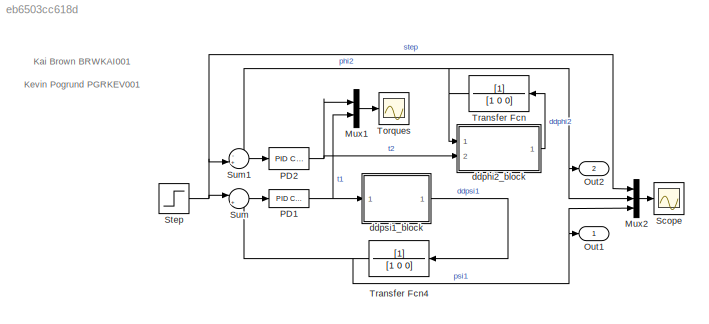
MODEL slx_eb6503cc618d
KIND model
CONFIG AbsTol = auto
CONFIG EnableMultiTasking = off
CONFIG FixedStep = auto
CONFIG MaxStep = auto
CONFIG MinStep = auto
CONFIG RelTol = 1e-3
CONFIG SampleTimeConstraint = Unconstrained
CONFIG SolverName = VariableStepAuto
CONFIG StartTime = 0.0
CONFIG StopTime = 3.5
BLOCK [Mux] Mux1
  DisplayOption = bar
  Inputs = 2
  Ports = [2, 1]
BLOCK [Mux] Mux2
  DisplayOption = bar
  Inputs = 3
  Ports = [3, 1]
BLOCK [Outport] Out1
  SampleTime = 0.01
BLOCK [Outport] Out2
  Port = 2
  SampleTime = 0.01
BLOCK [Reference] PD1  REF=pid_lib/PID Controller
  Ports = [1, 1]
  SourceBlock = pid_lib/PID Controller
  SourceProductBaseCode = SL
  SourceType = PID 1dof
BLOCK [Reference] PD2  REF=pid_lib/PID Controller
  Ports = [1, 1]
  SourceBlock = pid_lib/PID Controller
  SourceProductBaseCode = SL
  SourceType = PID 1dof
BLOCK [Scope] Scope
  Floating = off
  NumInputPorts = 1
  Ports = [1]
  ScopeSpecificationString = Simulink.scopes.TimeScopeBlockCfg('CurrentConfiguration', extmgr.ConfigurationSet(extmgr.Configuration('Core','General UI',true),extmgr.Configuration('Core','Source UI',true),extmgr.Configuration('Sources','WiredSimulink',true,'DataLoggingVariableName','ScopeData1'),extmgr.Configuration('Visuals','Time Domain',true,'SerializedDisplays',{struct('MinYLimReal','-9.42801','MaxYLimReal','84.79457','YLa...<+1419ch>
BLOCK [Step] Step
  After = 45
  SampleTime = 0
  Time = 0.02
BLOCK [Sum] Sum
  Inputs = |+-
  Ports = [2, 1]
BLOCK [Sum] Sum1
  Inputs = -+|
  Ports = [2, 1]
BLOCK [Scope] Torques
  Floating = off
  NumInputPorts = 1
  Ports = [1]
  ScopeSpecificationString = Simulink.scopes.TimeScopeBlockCfg('CurrentConfiguration', extmgr.ConfigurationSet(extmgr.Configuration('Core','General UI',true),extmgr.Configuration('Core','Source UI',true),extmgr.Configuration('Sources','WiredSimulink',true,'DataLoggingVariableName','ScopeData1'),extmgr.Configuration('Visuals','Time Domain',true,'SerializedDisplays',{struct('MinYLimReal','-5858.21566','MaxYLimReal','10651.90035...<+1750ch>
BLOCK [TransferFcn] Transfer Fcn
  Denominator = [1 0 0]
BLOCK [TransferFcn] Transfer Fcn4
  Denominator = [1 0 0]
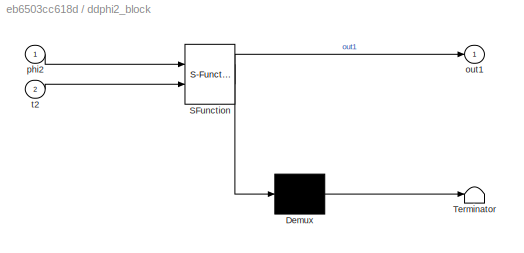
BLOCK [SubSystem] ddphi2_block
  ErrorFcn = Stateflow.Translate.translate
  PermitHierarchicalResolution = ExplicitOnly
  Ports = [2, 1]
  RequestExecContextInheritance = off
  SFBlockType = MATLAB Function
  TreatAsAtomicUnit = on
BLOCK [Demux] ddphi2_block/ Demux 
  Outputs = 1
  Ports = [1, 1]
BLOCK [S-Function] ddphi2_block/ SFunction 
  EnableBusSupport = on
  FunctionName = sf_sfun
  PortCounts = [2 2]
  Ports = [2, 2]
  SFcnIsStateOwnerBlock = off
  SFunctionDeploymentMode = off
  Tag = Stateflow S-Function 1
BLOCK [Terminator] ddphi2_block/ Terminator 
BLOCK [Outport] ddphi2_block/out1
BLOCK [Inport] ddphi2_block/phi2
BLOCK [Inport] ddphi2_block/t2
  Port = 2
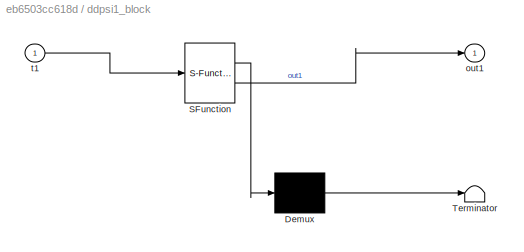
BLOCK [SubSystem] ddpsi1_block
  ErrorFcn = Stateflow.Translate.translate
  PermitHierarchicalResolution = ExplicitOnly
  Ports = [1, 1]
  RequestExecContextInheritance = off
  SFBlockType = MATLAB Function
  TreatAsAtomicUnit = on
BLOCK [Demux] ddpsi1_block/ Demux 
  Outputs = 1
  Ports = [1, 1]
BLOCK [S-Function] ddpsi1_block/ SFunction 
  EnableBusSupport = on
  FunctionName = sf_sfun
  PortCounts = [1 2]
  Ports = [1, 2]
  SFcnIsStateOwnerBlock = off
  SFunctionDeploymentMode = off
  Tag = Stateflow S-Function 2
BLOCK [Terminator] ddpsi1_block/ Terminator 
BLOCK [Outport] ddpsi1_block/out1
BLOCK [Inport] ddpsi1_block/t1
ANNOTATION (root): Kai Brown BRWKAI001
ANNOTATION (root): Kevin Pogrund PGRKEV001
LINE Mux1:1 -> Torques:1
LINE Mux2:1 -> Scope:1
NET PD1:1 -> Mux1:2, ddpsi1_block:1
NET PD2:1 -> Mux1:1, ddphi2_block:2
NET Step:1 -> Mux2:1, Sum1:2, Sum:1
LINE Sum1:1 -> PD2:1
LINE Sum:1 -> PD1:1
NET Transfer Fcn4:1 -> Mux2:3, Out1:1, Sum:2
NET Transfer Fcn:1 -> Mux2:2, Out2:1, Sum1:1, ddphi2_block:1
LINE ddphi2_block:1 -> Transfer Fcn:1
LINE ddpsi1_block:1 -> Transfer Fcn4:1
note: NET lines group one-source signal fan-out (src -> all destinations, sorted); 1:1 wires keep LINE
CHART ddpsi1_block states=1 transitions=1
  STATE_LABEL 'eML_blk_kernel()'
  STATE_LABEL 'SCRIPT:\nfunction out1 = ddpsi1_block(t1)\n%#codegen\n\n%    This function was generated by the Symbolic Math Toolbox version 8.7.\n%    24-May-2021 23:02:07\n\nout1 = t1.*(4.8e+1./1.1e+1);\n'
CHART ddphi2_block states=1 transitions=1
  STATE_LABEL 'eML_blk_kernel()'
  STATE_LABEL 'SCRIPT:\nfunction out1 = ddphi2_block(phi2,t2)\n%#codegen\n\n%    This function was generated by the Symbolic Math Toolbox version 8.7.\n%    24-May-2021 23:02:07\n\nout1 = t2.*(1.92e+2./7.0)-cos(phi2).*3.363428571428571e+1;\n'
CHART  states=0 transitions=0
CHART  states=0 transitions=0
